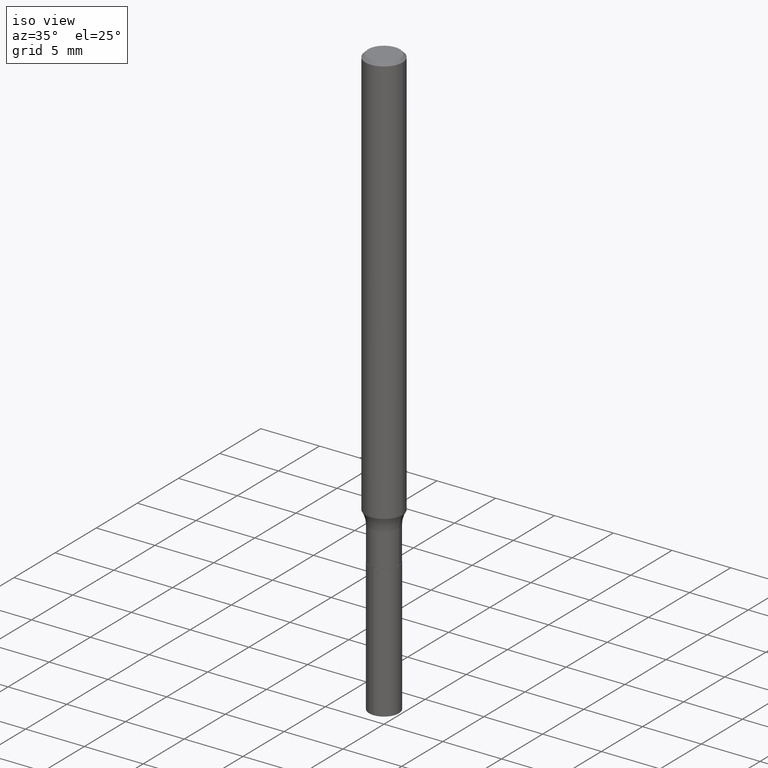
[diagram: clean part render]
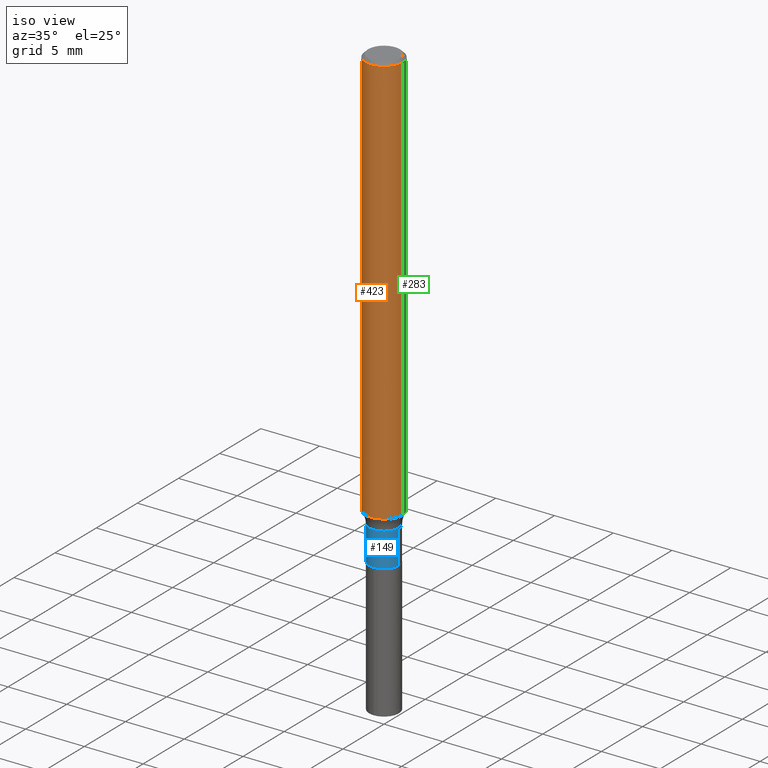
[diagram: same view with three faces highlighted in distinct colors, each labeled with its STEP entity id]
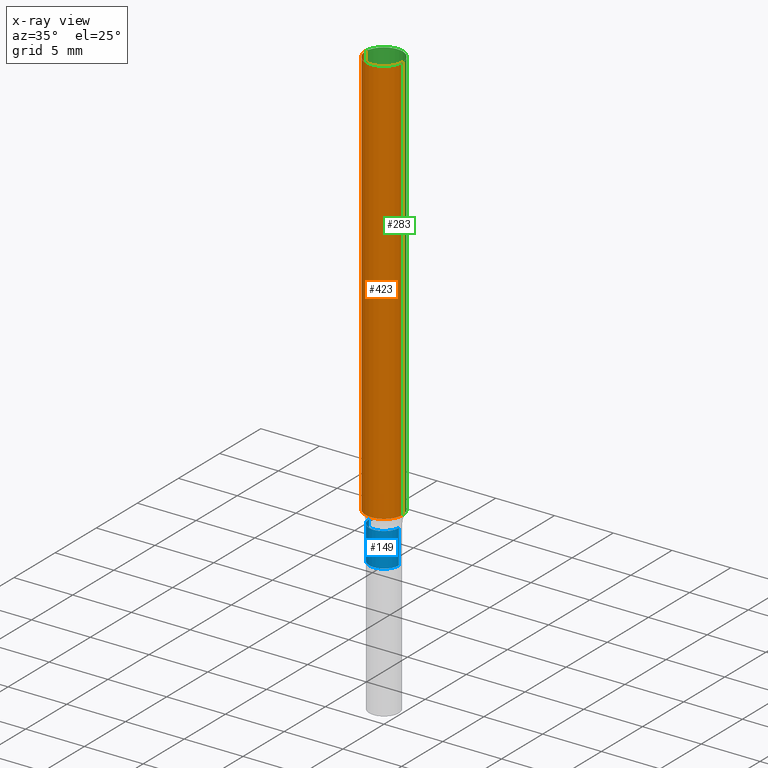
[diagram: x-ray of the same camera — body ghosted, the three highlighted faces saturated]
A machine part, iso view with three faces highlighted in distinct colors.
The next image is the same camera in x-ray (body ghosted, the three faces saturated) — at least one of them is partly hidden behind the body in this view.
Their STEP definitions:

[orange] entity #423 — the highlighted cylindrical surface (edge-blend (fillet) strip) has radius 1.5875 mm, axis along (-0, 0, 1).
#23 = DIRECTION ( 'NONE',  ( 1.000000000000000000, -6.982962677686266711E-15, 0.000000000000000000 ) ) ;
#43 = EDGE_CURVE ( 'NONE', #47, #425, #228, .T. ) ;
#47 = VERTEX_POINT ( 'NONE', #173 ) ;
#56 = VECTOR ( 'NONE', #223, 39.37007874015748143 ) ;
#58 = CARTESIAN_POINT ( 'NONE',  ( 0.000000000000000000, 0.000000000000000000, 0.000000000000000000 ) ) ;
#76 = VECTOR ( 'NONE', #367, 39.37007874015748143 ) ;
#93 = VERTEX_POINT ( 'NONE', #409 ) ;
#96 = FACE_OUTER_BOUND ( 'NONE', #152, .T. ) ;
#99 = CARTESIAN_POINT ( 'NONE',  ( 0.06250000000000008327, -4.364351673553922611E-16, 3.047610484872464074E-30 ) ) ;
#102 = DIRECTION ( 'NONE',  ( 1.000000000000000000, -6.982962677686266711E-15, 4.876176775795935793E-29 ) ) ;
#112 = CIRCLE ( 'NONE', #459, 0.06250000000000000000 ) ;
#113 = CARTESIAN_POINT ( 'NONE',  ( -0.06250000000000000000, -1.981160345435149449E-15, -0.009375000000000072511 ) ) ;
#146 = CARTESIAN_POINT ( 'NONE',  ( 0.06250000000000016653, -5.254201640374165172E-15, -1.379863159920274418 ) ) ;
#152 = EDGE_LOOP ( 'NONE', ( #432, #198, #249, #359 ) ) ;
#173 = CARTESIAN_POINT ( 'NONE',  ( -0.06250000000000016653, -4.373677263168709308E-15, -1.379863159920274418 ) ) ;
#193 = AXIS2_PLACEMENT_3D ( 'NONE', #397, #216, #470 ) ;
#198 = ORIENTED_EDGE ( 'NONE', *, *, #43, .T. ) ;
#216 = DIRECTION ( 'NONE',  ( -2.445468806185136597E-29, 3.491481338843145583E-15, 1.000000000000000000 ) ) ;
#217 = LINE ( 'NONE', #256, #76 ) ;
#223 = DIRECTION ( 'NONE',  ( -2.445468806185136877E-29, 3.491481338843145188E-15, 1.000000000000000000 ) ) ;
#228 = CIRCLE ( 'NONE', #193, 0.06250000000000016653 ) ;
#240 = VERTEX_POINT ( 'NONE', #113 ) ;
#249 = ORIENTED_EDGE ( 'NONE', *, *, #461, .T. ) ;
#256 = CARTESIAN_POINT ( 'NONE',  ( -0.06250000000000008327, 4.440892098500632078E-16, -3.074334431409319967E-30 ) ) ;
#281 = AXIS2_PLACEMENT_3D ( 'NONE', #58, #343, #102 ) ;
#295 = CARTESIAN_POINT ( 'NONE',  ( 2.292627005798583251E-31, -3.273263755165474498E-17, -0.009375000000000072511 ) ) ;
#331 = LINE ( 'NONE', #99, #56 ) ;
#343 = DIRECTION ( 'NONE',  ( -2.445468806185136597E-29, 3.491481338843145583E-15, 1.000000000000000000 ) ) ;
#359 = ORIENTED_EDGE ( 'NONE', *, *, #490, .F. ) ;
#367 = DIRECTION ( 'NONE',  ( -2.445468806185136877E-29, 3.491481338843145188E-15, 1.000000000000000000 ) ) ;
#397 = CARTESIAN_POINT ( 'NONE',  ( 3.374412314389083548E-29, -4.817766473018772713E-15, -1.379863159920274418 ) ) ;
#398 = CYLINDRICAL_SURFACE ( 'NONE', #281, 0.06250000000000008327 ) ;
#409 = CARTESIAN_POINT ( 'NONE',  ( 0.06250000000000000000, -4.691678049070464390E-16, -0.009375000000000072511 ) ) ;
#423 = ADVANCED_FACE ( 'NONE', ( #96 ), #398, .T. ) ;
#425 = VERTEX_POINT ( 'NONE', #146 ) ;
#432 = ORIENTED_EDGE ( 'NONE', *, *, #471, .F. ) ;
#459 = AXIS2_PLACEMENT_3D ( 'NONE', #295, #478, #23 ) ;
#461 = EDGE_CURVE ( 'NONE', #425, #93, #331, .T. ) ;
#470 = DIRECTION ( 'NONE',  ( 1.000000000000000000, -6.982962677686259611E-15, 0.000000000000000000 ) ) ;
#471 = EDGE_CURVE ( 'NONE', #47, #240, #217, .T. ) ;
#478 = DIRECTION ( 'NONE',  ( -2.445468806185136597E-29, 3.491481338843145583E-15, 1.000000000000000000 ) ) ;
#490 = EDGE_CURVE ( 'NONE', #240, #93, #112, .T. ) ;

[blue] entity #149 — the highlighted cylindrical surface (edge-blend (fillet) strip) has radius 1.2637 mm, axis along (-0, 0, 1).
#5 = DIRECTION ( 'NONE',  ( -2.445468806185136597E-29, 3.491481338843145583E-15, 1.000000000000000000 ) ) ;
#62 = CARTESIAN_POINT ( 'NONE',  ( 0.04975000000000002337, -5.712063470347386869E-15, -1.536500000000000421 ) ) ;
#65 = EDGE_CURVE ( 'NONE', #282, #126, #181, .T. ) ;
#75 = CIRCLE ( 'NONE', #434, 0.04975000000000000255 ) ;
#78 = CYLINDRICAL_SURFACE ( 'NONE', #433, 0.04975000000000000949 ) ;
#79 = CARTESIAN_POINT ( 'NONE',  ( -0.04975000000000000255, -4.812326203844726355E-15, -1.422600000000000087 ) ) ;
#103 = DIRECTION ( 'NONE',  ( -2.445468806185136597E-29, 3.491481338843145583E-15, 1.000000000000000000 ) ) ;
#126 = VERTEX_POINT ( 'NONE', #79 ) ;
#137 = VECTOR ( 'NONE', #255, 39.37007874015748143 ) ;
#143 = CARTESIAN_POINT ( 'NONE',  ( 0.000000000000000000, 0.000000000000000000, 0.000000000000000000 ) ) ;
#149 = ADVANCED_FACE ( 'NONE', ( #414 ), #78, .T. ) ;
#163 = LINE ( 'NONE', #313, #246 ) ;
#179 = EDGE_CURVE ( 'NONE', #282, #435, #289, .T. ) ;
#181 = LINE ( 'NONE', #439, #137 ) ;
#209 = ORIENTED_EDGE ( 'NONE', *, *, #369, .F. ) ;
#229 = AXIS2_PLACEMENT_3D ( 'NONE', #406, #103, #263 ) ;
#231 = DIRECTION ( 'NONE',  ( -2.445468806185136597E-29, 3.491481338843145583E-15, 1.000000000000000000 ) ) ;
#239 = CARTESIAN_POINT ( 'NONE',  ( 3.478923923678975324E-29, -4.966981352638258380E-15, -1.422600000000000087 ) ) ;
#246 = VECTOR ( 'NONE', #463, 39.37007874015748143 ) ;
#254 = CARTESIAN_POINT ( 'NONE',  ( -0.04975000000000002337, -4.812326203844726355E-15, -1.536500000000000421 ) ) ;
#255 = DIRECTION ( 'NONE',  ( -2.445468806185136877E-29, 3.491481338843145188E-15, 1.000000000000000000 ) ) ;
#258 = VERTEX_POINT ( 'NONE', #428 ) ;
#263 = DIRECTION ( 'NONE',  ( 1.000000000000000000, -6.982962677686275388E-15, 0.000000000000000000 ) ) ;
#282 = VERTEX_POINT ( 'NONE', #254 ) ;
#289 = CIRCLE ( 'NONE', #229, 0.04975000000000002337 ) ;
#308 = ORIENTED_EDGE ( 'NONE', *, *, #396, .T. ) ;
#313 = CARTESIAN_POINT ( 'NONE',  ( 0.04975000000000000949, -3.474023932148918320E-16, 2.425897945958478645E-30 ) ) ;
#314 = ORIENTED_EDGE ( 'NONE', *, *, #65, .F. ) ;
#357 = ORIENTED_EDGE ( 'NONE', *, *, #179, .T. ) ;
#369 = EDGE_CURVE ( 'NONE', #126, #258, #75, .T. ) ;
#371 = DIRECTION ( 'NONE',  ( 1.000000000000000000, -6.982962677686266711E-15, 4.876176775795935793E-29 ) ) ;
#385 = DIRECTION ( 'NONE',  ( 1.000000000000000000, -6.982962677686259611E-15, 0.000000000000000000 ) ) ;
#396 = EDGE_CURVE ( 'NONE', #435, #258, #163, .T. ) ;
#406 = CARTESIAN_POINT ( 'NONE',  ( 3.757462820703463708E-29, -5.364661077132495037E-15, -1.536500000000000421 ) ) ;
#414 = FACE_OUTER_BOUND ( 'NONE', #475, .T. ) ;
#428 = CARTESIAN_POINT ( 'NONE',  ( 0.04975000000000000255, -5.314383745853150212E-15, -1.422600000000000087 ) ) ;
#433 = AXIS2_PLACEMENT_3D ( 'NONE', #143, #231, #371 ) ;
#434 = AXIS2_PLACEMENT_3D ( 'NONE', #239, #5, #385 ) ;
#435 = VERTEX_POINT ( 'NONE', #62 ) ;
#439 = CARTESIAN_POINT ( 'NONE',  ( -0.04975000000000000949, 3.534950110406499099E-16, -2.447170207401816216E-30 ) ) ;
#463 = DIRECTION ( 'NONE',  ( -2.445468806185136877E-29, 3.491481338843145188E-15, 1.000000000000000000 ) ) ;
#475 = EDGE_LOOP ( 'NONE', ( #314, #357, #308, #209 ) ) ;

[green] entity #283 — the highlighted cylindrical surface (edge-blend (fillet) strip) has radius 1.5875 mm, axis along (-0, 0, 1).
#1 = DIRECTION ( 'NONE',  ( -2.445468806185136597E-29, 3.491481338843145583E-15, 1.000000000000000000 ) ) ;
#9 = CYLINDRICAL_SURFACE ( 'NONE', #212, 0.06250000000000008327 ) ;
#11 = CARTESIAN_POINT ( 'NONE',  ( 0.000000000000000000, 0.000000000000000000, 0.000000000000000000 ) ) ;
#13 = ORIENTED_EDGE ( 'NONE', *, *, #60, .F. ) ;
#20 = AXIS2_PLACEMENT_3D ( 'NONE', #327, #139, #136 ) ;
#36 = DIRECTION ( 'NONE',  ( 1.000000000000000000, -6.982962677686259611E-15, 0.000000000000000000 ) ) ;
#47 = VERTEX_POINT ( 'NONE', #173 ) ;
#56 = VECTOR ( 'NONE', #223, 39.37007874015748143 ) ;
#60 = EDGE_CURVE ( 'NONE', #93, #240, #280, .T. ) ;
#76 = VECTOR ( 'NONE', #367, 39.37007874015748143 ) ;
#93 = VERTEX_POINT ( 'NONE', #409 ) ;
#99 = CARTESIAN_POINT ( 'NONE',  ( 0.06250000000000008327, -4.364351673553922611E-16, 3.047610484872464074E-30 ) ) ;
#113 = CARTESIAN_POINT ( 'NONE',  ( -0.06250000000000000000, -1.981160345435149449E-15, -0.009375000000000072511 ) ) ;
#136 = DIRECTION ( 'NONE',  ( 1.000000000000000000, -6.982962677686266711E-15, 0.000000000000000000 ) ) ;
#139 = DIRECTION ( 'NONE',  ( -2.445468806185136597E-29, 3.491481338843145583E-15, 1.000000000000000000 ) ) ;
#146 = CARTESIAN_POINT ( 'NONE',  ( 0.06250000000000016653, -5.254201640374165172E-15, -1.379863159920274418 ) ) ;
#173 = CARTESIAN_POINT ( 'NONE',  ( -0.06250000000000016653, -4.373677263168709308E-15, -1.379863159920274418 ) ) ;
#183 = DIRECTION ( 'NONE',  ( -2.445468806185136597E-29, 3.491481338843145583E-15, 1.000000000000000000 ) ) ;
#201 = ORIENTED_EDGE ( 'NONE', *, *, #471, .T. ) ;
#202 = EDGE_CURVE ( 'NONE', #425, #47, #365, .T. ) ;
#212 = AXIS2_PLACEMENT_3D ( 'NONE', #11, #1, #457 ) ;
#217 = LINE ( 'NONE', #256, #76 ) ;
#223 = DIRECTION ( 'NONE',  ( -2.445468806185136877E-29, 3.491481338843145188E-15, 1.000000000000000000 ) ) ;
#240 = VERTEX_POINT ( 'NONE', #113 ) ;
#256 = CARTESIAN_POINT ( 'NONE',  ( -0.06250000000000008327, 4.440892098500632078E-16, -3.074334431409319967E-30 ) ) ;
#280 = CIRCLE ( 'NONE', #20, 0.06250000000000000000 ) ;
#283 = ADVANCED_FACE ( 'NONE', ( #460 ), #9, .T. ) ;
#286 = EDGE_LOOP ( 'NONE', ( #420, #201, #13, #386 ) ) ;
#318 = AXIS2_PLACEMENT_3D ( 'NONE', #377, #183, #36 ) ;
#327 = CARTESIAN_POINT ( 'NONE',  ( 2.292627005798583251E-31, -3.273263755165474498E-17, -0.009375000000000072511 ) ) ;
#331 = LINE ( 'NONE', #99, #56 ) ;
#365 = CIRCLE ( 'NONE', #318, 0.06250000000000016653 ) ;
#367 = DIRECTION ( 'NONE',  ( -2.445468806185136877E-29, 3.491481338843145188E-15, 1.000000000000000000 ) ) ;
#377 = CARTESIAN_POINT ( 'NONE',  ( 3.374412314389083548E-29, -4.817766473018772713E-15, -1.379863159920274418 ) ) ;
#386 = ORIENTED_EDGE ( 'NONE', *, *, #461, .F. ) ;
#409 = CARTESIAN_POINT ( 'NONE',  ( 0.06250000000000000000, -4.691678049070464390E-16, -0.009375000000000072511 ) ) ;
#420 = ORIENTED_EDGE ( 'NONE', *, *, #202, .T. ) ;
#425 = VERTEX_POINT ( 'NONE', #146 ) ;
#457 = DIRECTION ( 'NONE',  ( 1.000000000000000000, -6.982962677686266711E-15, 4.876176775795935793E-29 ) ) ;
#460 = FACE_OUTER_BOUND ( 'NONE', #286, .T. ) ;
#461 = EDGE_CURVE ( 'NONE', #425, #93, #331, .T. ) ;
#471 = EDGE_CURVE ( 'NONE', #47, #240, #217, .T. ) ;